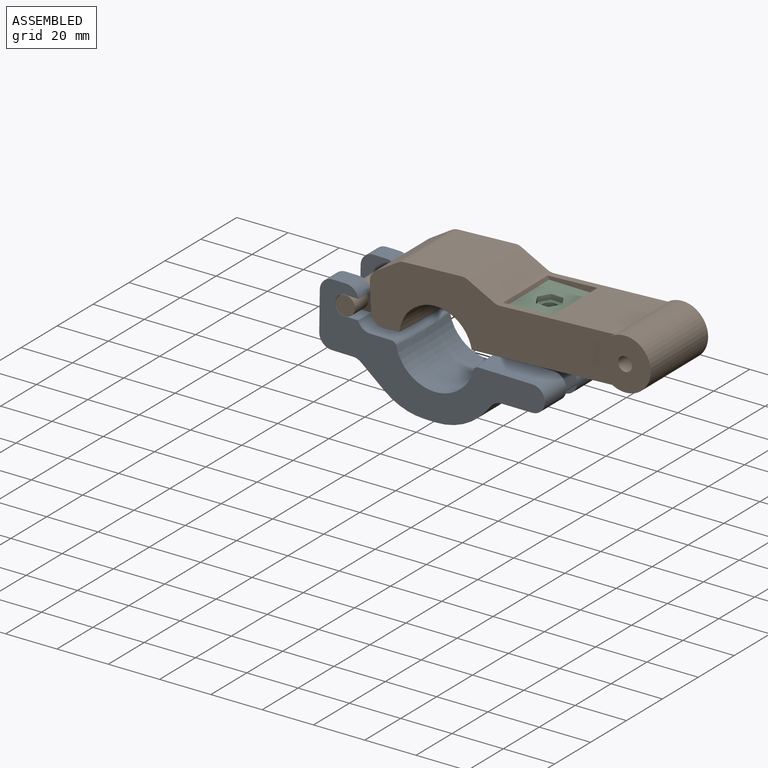
[diagram: assembled view]
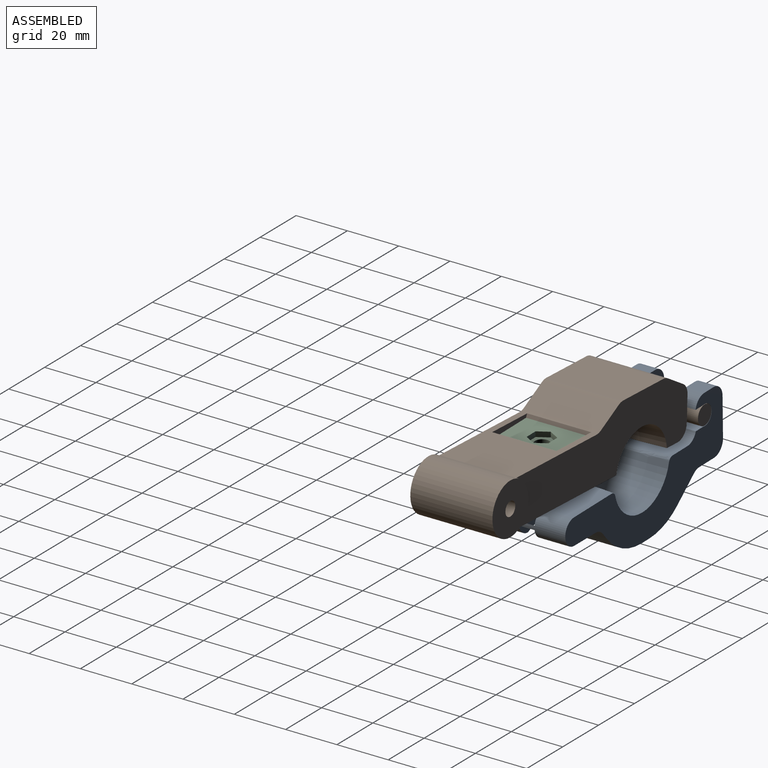
[diagram: assembled view, second angle]
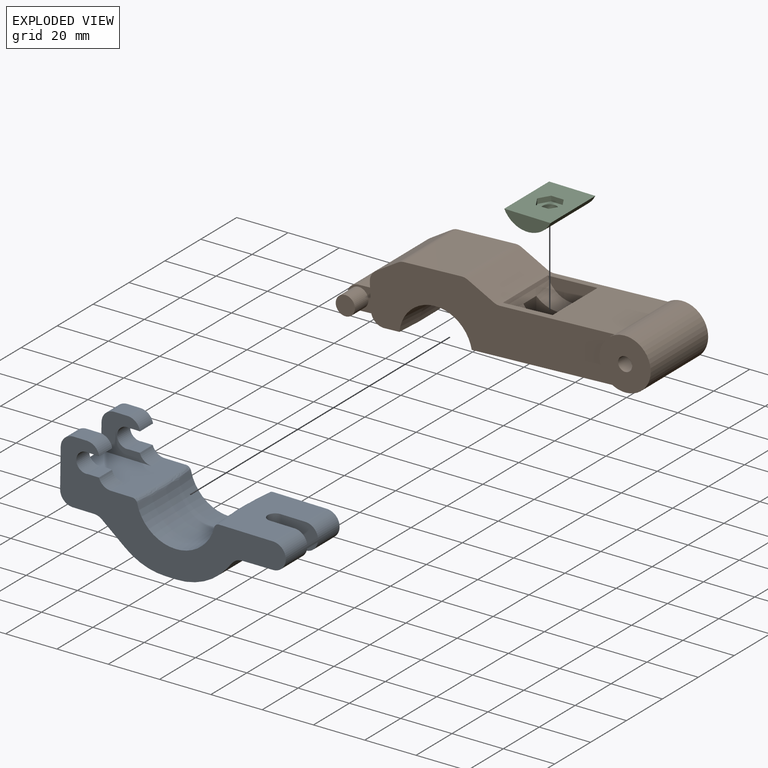
[diagram: exploded view]
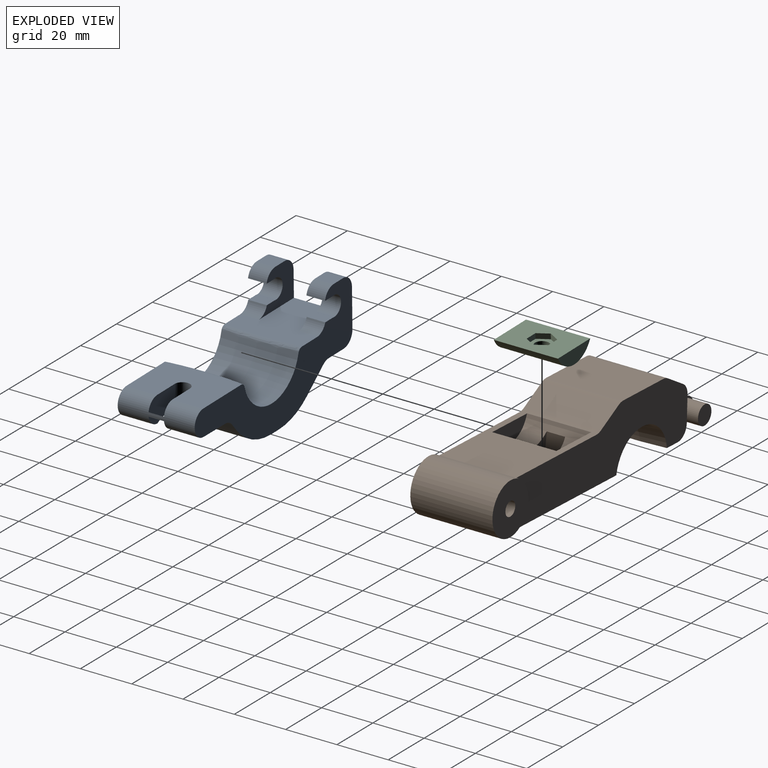
[diagram: exploded view, second angle]
ASSEMBLY  parts=3 mates=2
PART A: 48 faces, bbox 107x177.6x68 mm
  f0: plane 11.99x7.5mm, normal (-0.01,0,-1), area 89.8mm2, adj f15,f30,f39,f47
  f1: plane 11.99x7.5mm, normal (-0.01,0,-1), area 89.8mm2, adj f16,f30,f37,f45
  f2: plane 30.03x28.99mm, normal (0,0,1), area 574.4mm2, adj f5,f15,f16,f24,f25,f28,f35,f42
  f3: plane 30.09x21.99mm, normal (0,0,1), area 576.4mm2, adj f15,f16,f21,f22,f23,f36,f43
  f4: plane 7.25x5.09mm, normal (0,0,1), area 36.9mm2, adj f15,f24,f33,f34
  f5: plane 30x15mm, normal (1,0,0), area 295mm2, adj f2,f15,f16,f24,f25,f29,f32,f33
  f6: cylinder r=3.88mm len=7.75mm, axis (0,-1,0), area 99.3mm2, adj f7,f8,f15,f24
  f7: plane 7.25x4.24mm, normal (0,0,-1), area 30.7mm2, adj f6,f15,f24,f34
  f8: plane 7.25x4.24mm, normal (0,0,1), area 30.7mm2, adj f6,f15,f24,f35
  f9: plane 30x2.73mm, normal (-0.78,0,-0.63), area 103.8mm2, adj f15,f16,f37,f38,f39,f40
  f10: plane 30x4.22mm, normal (0,0,-1), area 126.6mm2, adj f15,f16,f40,f41
  f11: plane 30x9.26mm, normal (0.63,0,-0.78), area 356.7mm2, adj f15,f16,f31,f41
  f12: plane 30x8.24mm, normal (0,0,-1), area 247.1mm2, adj f15,f16,f31,f32
  f13: plane 7.25x5.09mm, normal (0,0,1), area 36.9mm2, adj f16,f25,f27,f29
  f14: plane 30x0.06mm, normal (-1,0,0), area 1.7mm2, adj f15,f16,f30,f36
  f15: plane 88.01x39.16mm, normal (0,-1,0), area 1238mm2, adj f0,f2,f3,f4,f5,f6,f7,f8
  f16: plane 88.01x39.16mm, normal (0,1,0), area 1238mm2, adj f1,f2,f3,f5,f9,f10,f11,f12
  f17: cylinder r=3.88mm len=7.75mm, axis (0,-1,0), area 99.3mm2, adj f16,f18,f19,f25
  f18: plane 7.25x4.24mm, normal (0,0,-1), area 30.7mm2, adj f16,f17,f25,f27
  f19: plane 7.25x4.24mm, normal (0,0,1), area 30.7mm2, adj f16,f17,f25,f28
  f20: plane 6x1.58mm, normal (1,0,-0.01), area 9.5mm2, adj f21,f22,f30,f36
  f21: plane 14.72x10.06mm, normal (0,-1,0), area 126mm2, adj f3,f20,f23,f30,f36,f44
  f22: plane 14.72x10.06mm, normal (0,1,0), area 126mm2, adj f3,f20,f23,f30,f36,f46
  f23: cylinder r=3mm len=10.2mm, axis (-0.01,0,-1), area 90.1mm2, adj f3,f21,f22,f38,f44,f46
  f24: plane 19.72x15mm, normal (0,1,0), area 157.3mm2, adj f2,f4,f5,f6,f7,f8,f33,f34
  f25: plane 19.72x15mm, normal (0,-1,0), area 157.3mm2, adj f2,f5,f13,f17,f18,f19,f27,f28
  f26: torus R=139.5mm, axis (0,1,0), area 1191.7mm2, adj f15,f16,f42,f43
  f27: cylinder r=5mm len=7.25mm, axis (0,1,0), area 50mm2, adj f13,f16,f18,f25
  f28: cylinder r=5mm len=7.25mm, axis (0,1,0), area 44.7mm2, adj f2,f16,f19,f25
  f29: cylinder r=5mm len=7.25mm, axis (0,-1,0), area 56.9mm2, adj f5,f13,f16,f25
  f30: cylinder r=5mm len=30mm, axis (0,1,0), area 191.3mm2, adj f0,f1,f14,f15,f16,f20,f21,f22
  f31: cylinder r=5mm len=30mm, axis (0,-1,0), area 101.6mm2, adj f11,f12,f15,f16
  f32: cylinder r=5mm len=30mm, axis (0,1,0), area 235.6mm2, adj f5,f12,f15,f16
  f33: cylinder r=5mm len=7.25mm, axis (0,-1,0), area 56.9mm2, adj f4,f5,f15,f24
  f34: cylinder r=5mm len=7.25mm, axis (0,1,0), area 50mm2, adj f4,f7,f15,f24
  f35: cylinder r=5mm len=7.25mm, axis (0,1,0), area 44.7mm2, adj f2,f8,f15,f24
  f36: cylinder r=5mm len=30mm, axis (0,1,0), area 193.4mm2, adj f3,f14,f15,f16,f20,f21,f22
  f37: cylinder r=5mm len=13.23mm, axis (0,-1,0), area 58.3mm2, adj f1,f9,f16,f38,f44
  f38: bspline ~4.08x3.99mm, area 14.2mm2, adj f9,f23,f37,f39
  f39: cylinder r=5mm len=13.23mm, axis (0,-1,0), area 58.2mm2, adj f0,f9,f15,f38,f46
  f40: cylinder r=25mm len=30mm, axis (0,1,0), area 669.9mm2, adj f9,f10,f15,f16
  f41: cylinder r=25mm len=30mm, axis (0,1,0), area 508.2mm2, adj f10,f11,f15,f16
  f42: bspline ~39.43x3.5mm, area 80.2mm2, adj f2,f15,f16,f26
  f43: bspline ~39.43x3.5mm, area 80.2mm2, adj f3,f15,f16,f26
  f44: cylinder r=12mm len=12mm, axis (0,-1,0), area 58.1mm2, adj f21,f23,f30,f37,f45
  f45: plane 11.99x1.68mm, normal (0,-1,0), area 13mm2, adj f1,f44
  f46: cylinder r=12mm len=12mm, axis (0,-1,0), area 58.1mm2, adj f22,f23,f30,f39,f47
  f47: plane 11.99x1.68mm, normal (0,1,0), area 13mm2, adj f0,f46
PART B: 36 faces, bbox 146.1x213x60.7 mm
  f0: plane 57.31x30.05mm, normal (0,0,-1), area 1447.5mm2, adj f8,f9,f10,f16,f17,f18,f19,f35
  f1: plane 30.05x21.67mm, normal (0,0,-1), area 416.9mm2, adj f8,f9,f21,f22,f23,f28,f32,f35
  f2: plane 30x10.07mm, normal (-1,0,0), area 167.1mm2, adj f8,f9,f22,f23,f28,f29,f31,f32
  f3: cylinder r=10mm len=25mm, axis (0,-1,0), area 506.5mm2, adj f4,f14,f15,f16,f17,f18,f19,f33
  f4: plane 44.68x30mm, normal (0,0,1), area 872.4mm2, adj f3,f8,f9,f10,f14,f15,f33
  f5: plane 30x22.36mm, normal (0,0,1), area 670.7mm2, adj f8,f9,f30,f34
  f6: plane 30x8.8mm, normal (-0.49,0,0.87), area 302.7mm2, adj f8,f9,f30,f31
  f7: plane 30x9.8mm, normal (0.5,0,0.87), area 339.6mm2, adj f8,f9,f33,f34
  f8: plane 95.64x25mm, normal (0,-1,0), area 1640.8mm2, adj f0,f1,f2,f4,f5,f6,f7,f10
  f9: plane 95.64x25mm, normal (0,1,0), area 1640.8mm2, adj f0,f1,f2,f4,f5,f6,f7,f10
  f10: cylinder r=10mm len=32mm, axis (0,1,0), area 1338.8mm2, adj f0,f4,f8,f9,f11,f12
  f11: plane 20x20mm, normal (0,-1,0), area 290.4mm2, adj f10,f13
  f12: plane 20x20mm, normal (0,1,0), area 290.4mm2, adj f10,f13
  f13: cylinder r=2.75mm len=32mm, axis (0,-1,0), area 552.9mm2, adj f11,f12
  f14: plane 19.38x7.54mm, normal (0,-1,0), area 107.6mm2, adj f3,f4,f33
  f15: plane 19.38x7.54mm, normal (0,1,0), area 107.6mm2, adj f3,f4,f33
  f16: plane 21.35x14.63mm, normal (0,0.98,-0.17), area 231.3mm2, adj f0,f3,f17,f19
  f17: plane 14.63x12.35mm, normal (-0.98,0,-0.17), area 145.1mm2, adj f0,f3,f16,f18
  f18: plane 21.35x14.63mm, normal (0,-0.98,-0.17), area 231.3mm2, adj f0,f3,f17,f19
  f19: plane 14.63x12.35mm, normal (0.98,0,-0.17), area 145.1mm2, adj f0,f3,f16,f18
  f20: plane 15x5mm, normal (0,0,1), area 75mm2, adj f21,f22,f23,f29
  f21: cylinder r=4.5mm len=15mm, axis (0,1,0), area 212.1mm2, adj f1,f20,f22,f23
  f22: plane 19.5x14mm, normal (0,-1,0), area 88.4mm2, adj f1,f2,f20,f21,f26,f29,f32
  f23: plane 19.5x14mm, normal (0,1,0), area 88.4mm2, adj f1,f2,f20,f21,f25,f28,f29
  f24: plane 7.5x7.5mm, normal (0,1,0), area 44.2mm2, adj f25
  f25: cylinder r=3.75mm len=7.5mm, axis (0,1,0), area 176.7mm2, adj f23,f24
  f26: cylinder r=3.75mm len=7.5mm, axis (0,1,0), area 176.7mm2, adj f22,f27
  f27: plane 7.5x7.5mm, normal (0,-1,0), area 44.2mm2, adj f26
  f28: cylinder r=5mm len=7.5mm, axis (0,-1,0), area 58.9mm2, adj f1,f2,f9,f23
  f29: cylinder r=5mm len=15mm, axis (0,-1,0), area 117.8mm2, adj f2,f20,f22,f23
  f30: cylinder r=5mm len=30mm, axis (0,1,0), area 76.6mm2, adj f5,f6,f8,f9
  f31: cylinder r=5mm len=30mm, axis (0,-1,0), area 159mm2, adj f2,f6,f8,f9
  f32: cylinder r=5mm len=7.5mm, axis (0,-1,0), area 58.9mm2, adj f1,f2,f8,f22
  f33: cylinder r=5mm len=30mm, axis (0,1,0), area 62.1mm2, adj f3,f4,f7,f8,f9,f14,f15
  f34: cylinder r=5mm len=30mm, axis (0,1,0), area 78.5mm2, adj f5,f7,f8,f9
  f35: torus R=163.5mm, axis (0,1,0), area 1177.5mm2, adj f0,f1,f8,f9
PART C: 12 faces, bbox 18x25x5.6 mm
  f0: cylinder r=10mm len=25mm, axis (0,1,0), area 535.9mm2, adj f1,f2,f3,f11
  f1: plane 25x18mm, normal (0,0,-1), area 387.4mm2, adj f0,f2,f3,f4,f5,f6,f7,f8
  f2: plane 18x5.64mm, normal (0,-1,0), area 72.7mm2, adj f0,f1
  f3: plane 18x5.64mm, normal (0,1,0), area 72.7mm2, adj f0,f1
  f4: plane 4.25x2.45mm, normal (-0.87,0.5,0), area 9.8mm2, adj f1,f5,f9,f10
  f5: plane 4.91x2mm, normal (0,1,0), area 9.8mm2, adj f1,f4,f6,f10
  f6: plane 4.25x2.45mm, normal (0.87,0.5,0), area 9.8mm2, adj f1,f5,f7,f10
  f7: plane 4.25x2.45mm, normal (0.87,-0.5,0), area 9.8mm2, adj f1,f6,f8,f10
  f8: plane 4.91x2mm, normal (0,-1,0), area 9.8mm2, adj f1,f7,f9,f10
  f9: plane 4.25x2.45mm, normal (-0.87,-0.5,0), area 9.8mm2, adj f1,f4,f8,f10
  f10: plane 9.82x8.5mm, normal (0,0,-1), area 38.8mm2, adj f4,f5,f6,f7,f8,f9,f11
  f11: cylinder r=2.75mm len=5.5mm, axis (0,0,-1), area 59.6mm2, adj f0,f10
PLACE A rot(axis=(-0.01,0,-1),180deg) t=(-96.46,-59.6,40.67)mm
PLACE B rot(axis=(0.03,-1,0.01),2.4deg) t=(-21.67,-59.57,55.46)mm
PLACE C rot(axis=(0,-1,0),179.1deg) t=(-62.18,-59.6,60.91)mm
MATE revolute C.f0 <-> B.f3  axis (0,1,0) through (-62.12,-59.61,65.27)mm
MATE revolute B.f21 <-> A.f6  axis (0,-1,0) through (-131.37,-74.63,46.32)mm
